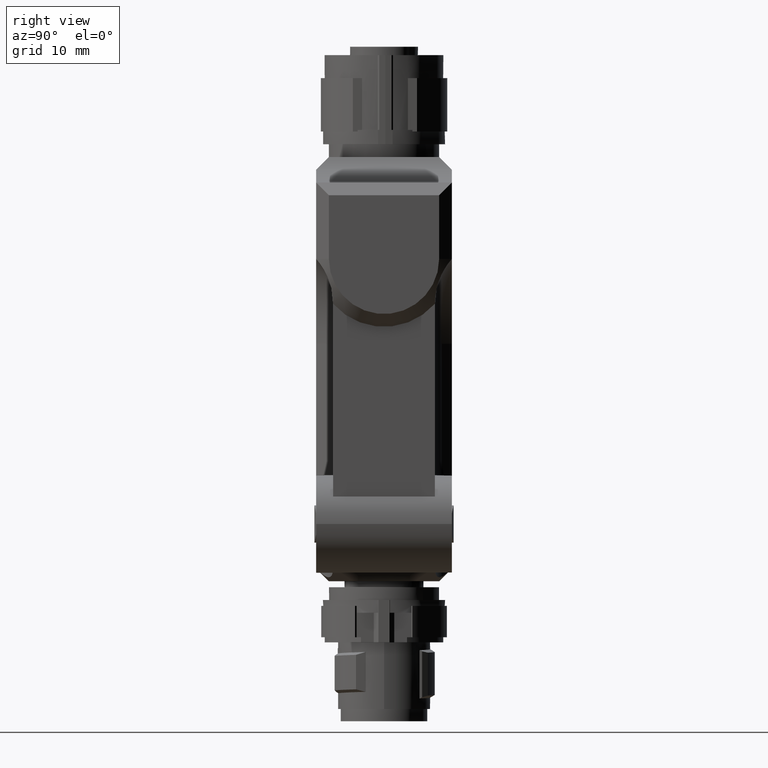
[diagram: clean part render]
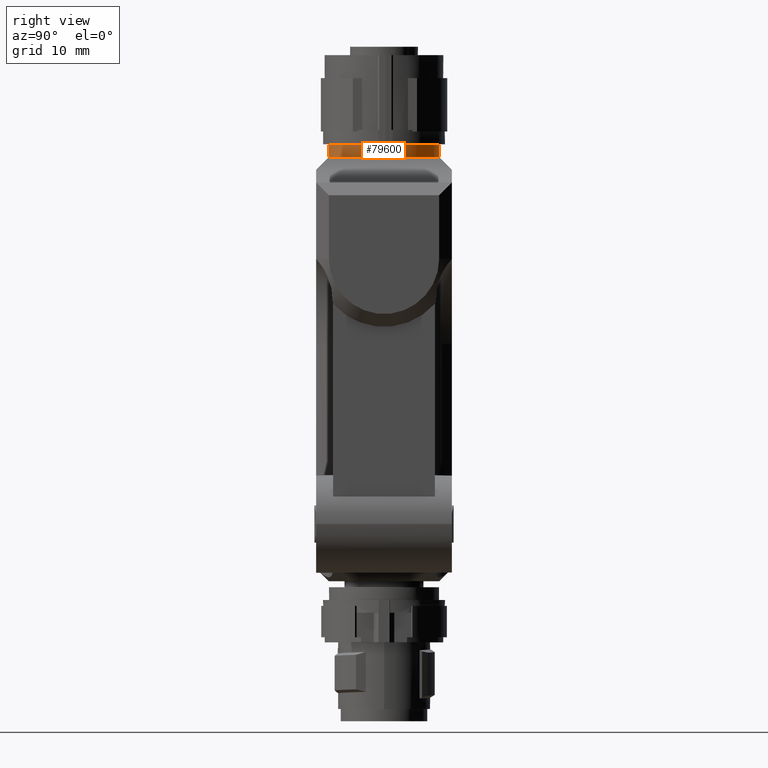
[diagram: same view with one face highlighted and labeled with its STEP entity id]
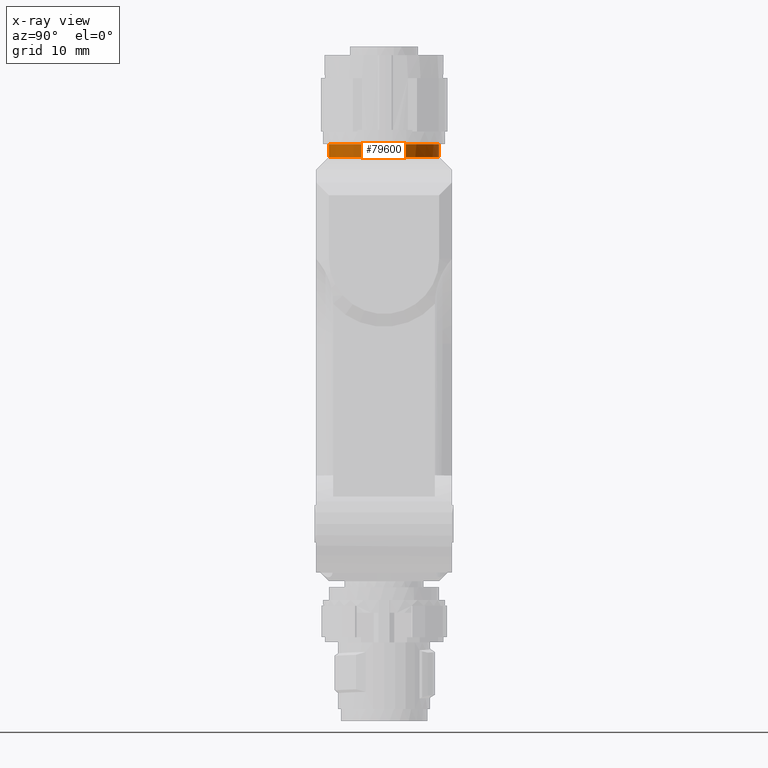
[diagram: x-ray of the same camera — body ghosted, the highlighted face saturated]
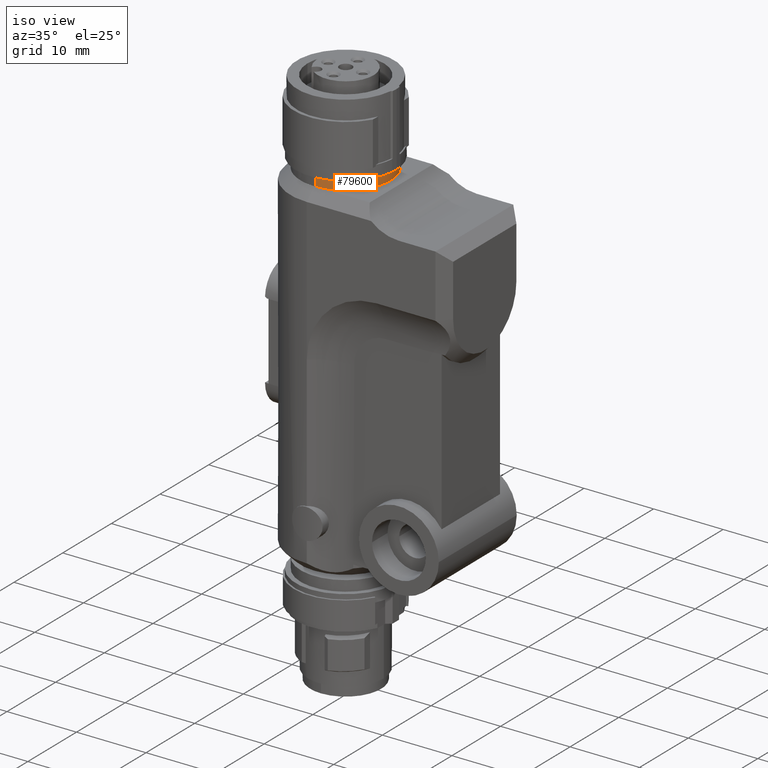
[diagram: same view with one face highlighted and labeled with its STEP entity id]
A machine part, right view. The second image highlights one B-rep face of the part: STEP entity #79600.
The next image is the same camera in x-ray: the body ghosted, the highlighted face saturated — about 0% of this face is hidden behind the body in this view.
A second angle (iso view) of the same face is appended — the face is thin or edge-on in the first view.
In plain terms, the highlighted cylindrical surface (partial cylindrical patch) has radius 6.5 mm, axis along (0, 0, -1).
Its self-contained STEP definition (entity closure, byte-faithful):
#15720=CARTESIAN_POINT('',(-0.000417493227865063,-0.000429919760005362,
50.));
#15730=DIRECTION('',(-7.04814503954624E-13,1.9667791958662E-13,-1.));
#15740=DIRECTION('',(-0.999726473883919,-0.0233875483030034,
7.00021904436333E-13));
#15750=AXIS2_PLACEMENT_3D('',#15720,#15730,#15740);
#15760=CIRCLE('',#15750,6.5);
#15770=CARTESIAN_POINT('',(6.49780458701761,0.151589144209518,
49.9999999999955));
#15780=VERTEX_POINT('',#15770);
#15810=CARTESIAN_POINT('',(-6.50000000000016,0.0732398686302559,
49.9999999999999));
#15820=VERTEX_POINT('',#15810);
#15830=EDGE_CURVE('',#15820,#15780,#15760,.T.);
#79200=CARTESIAN_POINT('',(-0.000417493226807841,-0.000429919760300379,
51.5000000000026));
#79210=DIRECTION('',(-7.04814503954624E-13,1.9667791958662E-13,-1.));
#79220=DIRECTION('',(-0.99972647388392,-0.0233875483030034,
7.00021904436332E-13));
#79230=AXIS2_PLACEMENT_3D('',#79200,#79210,#79220);
#79240=CYLINDRICAL_SURFACE('',#79230,6.5);
#79250=ORIENTED_EDGE('',*,*,#15830,.F.);
#79260=CARTESIAN_POINT('',(6.49780458701867,0.151589144209223,
51.4999999999981));
#79270=DIRECTION('',(-7.04814503954624E-13,1.9667791958662E-13,-1.));
#79280=VECTOR('',#79270,1.);
#79290=LINE('',#79260,#79280);
#79300=CARTESIAN_POINT('',(6.49780458701867,0.151589144209223,
51.4999999999981));
#79310=VERTEX_POINT('',#79300);
#79320=EDGE_CURVE('',#79310,#15780,#79290,.T.);
#79330=ORIENTED_EDGE('',*,*,#79320,.T.);
#79340=CARTESIAN_POINT('',(-0.000417493226807841,-0.000429919760300379,
51.5000000000026));
#79350=DIRECTION('',(-7.04814503954624E-13,1.9667791958662E-13,-1.));
#79360=DIRECTION('',(-0.99972647388392,-0.0233875483030034,
7.00021904436333E-13));
#79370=AXIS2_PLACEMENT_3D('',#79340,#79350,#79360);
#79380=CIRCLE('',#79370,6.5);
#79390=CARTESIAN_POINT('',(-6.49863957347229,-0.152448983729823,
51.5000000000072));
#79400=VERTEX_POINT('',#79390);
#79410=EDGE_CURVE('',#79400,#79310,#79380,.T.);
#79420=ORIENTED_EDGE('',*,*,#79410,.T.);
#79430=CARTESIAN_POINT('',(-6.49863957347229,-0.152448983729823,
51.5000000000072));
#79440=DIRECTION('',(-7.04814503954624E-13,1.9667791958662E-13,-1.));
#79450=VECTOR('',#79440,1.);
#79460=LINE('',#79430,#79450);
#79470=CARTESIAN_POINT('',(-6.49863957347334,-0.152448983729528,
50.0000000000046));
#79480=VERTEX_POINT('',#79470);
#79490=EDGE_CURVE('',#79400,#79480,#79460,.T.);
#79500=ORIENTED_EDGE('',*,*,#79490,.F.);
#79510=CARTESIAN_POINT('',(-0.000417493227865107,-0.000429919760001951,
50.));
#79520=DIRECTION('',(-7.04814503954624E-13,1.9667791958662E-13,-1.));
#79530=DIRECTION('',(-0.999726473883919,-0.0233875483030034,
7.00021904436333E-13));
#79540=AXIS2_PLACEMENT_3D('',#79510,#79520,#79530);
#79550=CIRCLE('',#79540,6.5);
#79560=EDGE_CURVE('',#79480,#15820,#79550,.T.);
#79570=ORIENTED_EDGE('',*,*,#79560,.F.);
#79580=EDGE_LOOP('',(#79570,#79500,#79420,#79330,#79250));
#79590=FACE_OUTER_BOUND('',#79580,.T.);
#79600=ADVANCED_FACE('',(#79590),#79240,.T.);